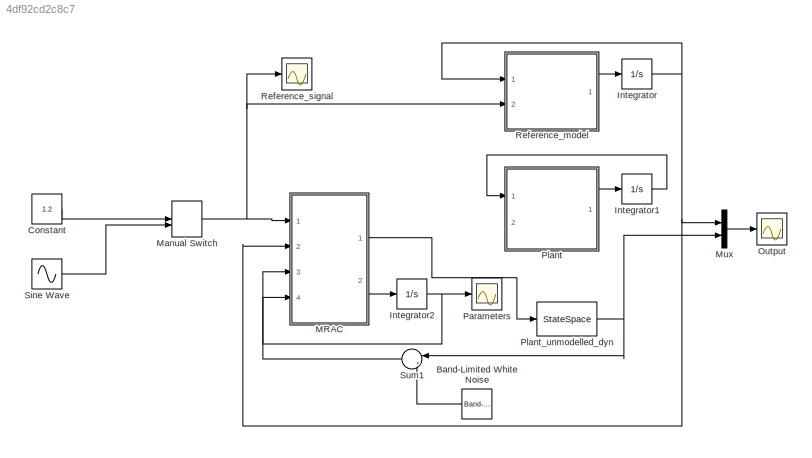
MODEL slx_4df92cd2c8c7
KIND model
CONFIG AbsTol = auto
CONFIG FixedStep = auto
CONFIG MaxStep = auto
CONFIG MinStep = auto
CONFIG RelTol = 1e-3
CONFIG SampleTimeConstraint = Unconstrained
CONFIG Solver = VariableStepAuto
CONFIG SolverMode = Auto
CONFIG SolverName = VariableStepAuto
CONFIG StartTime = 0.0
CONFIG StopTime = 14
BLOCK [Reference] Band-Limited White Noise  REF=simulink/Sources/Band-Limited
White Noise
  Ports = [0, 1]
  SourceBlock = simulink/Sources/Band-Limited\nWhite Noise
  SourceType = Band-Limited White Noise.
BLOCK [Constant] Constant
  Value = 1.2
BLOCK [Integrator] Integrator
  InitialCondition = xm_init
  Ports = [1, 1]
BLOCK [Integrator] Integrator1
  Commented = on
  InitialCondition = xp_init
  Ports = [1, 1]
BLOCK [Integrator] Integrator2
  InitialCondition = theta_init
  Ports = [1, 1]
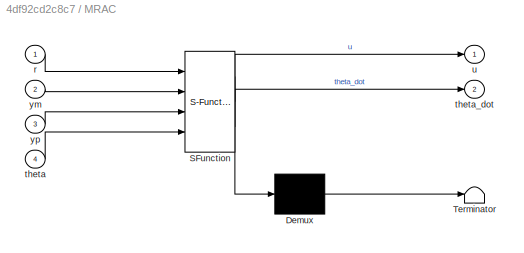
BLOCK [SubSystem] MRAC
  ErrorFcn = Stateflow.Translate.translate
  PermitHierarchicalResolution = ExplicitOnly
  Ports = [4, 2]
  RequestExecContextInheritance = off
  SFBlockType = MATLAB Function
  TreatAsAtomicUnit = on
  Variant = off
BLOCK [Demux] MRAC/ Demux 
  Outputs = 1
  Ports = [1, 1]
BLOCK [S-Function] MRAC/ SFunction 
  EnableBusSupport = on
  FunctionName = sf_sfun
  Parameters = Gamma,kp
  PortCounts = [4 3]
  Ports = [4, 3]
  SFunctionDeploymentMode = off
  Tag = Stateflow S-Function simulink_rohrs 3
BLOCK [Terminator] MRAC/ Terminator 
BLOCK [Inport] MRAC/r
  IconDisplay = Port number
BLOCK [Inport] MRAC/theta
  IconDisplay = Port number
  Port = 4
BLOCK [Outport] MRAC/theta_dot
  IconDisplay = Port number
  Port = 2
BLOCK [Outport] MRAC/u
  IconDisplay = Port number
BLOCK [Inport] MRAC/ym
  IconDisplay = Port number
  Port = 2
BLOCK [Inport] MRAC/yp
  IconDisplay = Port number
  Port = 3
BLOCK [ManualSwitch] Manual Switch
BLOCK [Mux] Mux
  DisplayOption = bar
  Inputs = 2
  Ports = [2, 1]
BLOCK [Scope] Output
  Ports = [1]
  ScopeSpecificationString = Simulink.scopes.TimeScopeBlockCfg('CurrentConfiguration', extmgr.ConfigurationSet(extmgr.Configuration('Core','General UI',true),extmgr.Configuration('Core','Source UI',true),extmgr.Configuration('Sources','WiredSimulink',true),extmgr.Configuration('Visuals','Time Domain',true,'SerializedDisplays',{struct('MinYLimReal','-2.09364','MaxYLimReal','2.51915','YLabelReal','','MinYLimMag','0.00000','MaxY...<+1396ch>
BLOCK [Scope] Parameters
  Ports = [1]
  ScopeSpecificationString = Simulink.scopes.TimeScopeBlockCfg('CurrentConfiguration', extmgr.ConfigurationSet(extmgr.Configuration('Core','General UI',true),extmgr.Configuration('Core','Source UI',true),extmgr.Configuration('Sources','WiredSimulink',true,'DataLoggingVariableName','ScopeData2'),extmgr.Configuration('Visuals','Time Domain',true,'SerializedDisplays',{struct('MinYLimReal','-6.08725','MaxYLimReal','4.57747','YLab...<+1430ch>
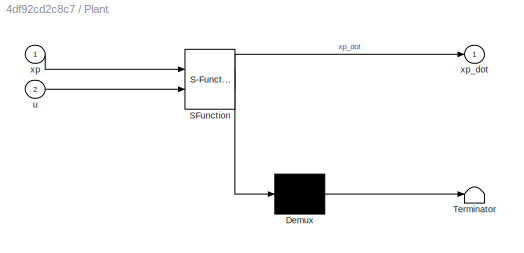
BLOCK [SubSystem] Plant
  Commented = on
  ErrorFcn = Stateflow.Translate.translate
  PermitHierarchicalResolution = ExplicitOnly
  Ports = [2, 1]
  RequestExecContextInheritance = off
  SFBlockType = MATLAB Function
  TreatAsAtomicUnit = on
  Variant = off
BLOCK [Demux] Plant/ Demux 
  Outputs = 1
  Ports = [1, 1]
BLOCK [S-Function] Plant/ SFunction 
  EnableBusSupport = on
  FunctionName = sf_sfun
  Parameters = ap,kp
  PortCounts = [2 2]
  Ports = [2, 2]
  SFunctionDeploymentMode = off
  Tag = Stateflow S-Function simulink_rohrs 2
BLOCK [Terminator] Plant/ Terminator 
BLOCK [Inport] Plant/u
  IconDisplay = Port number
  Port = 2
BLOCK [Inport] Plant/xp
  IconDisplay = Port number
BLOCK [Outport] Plant/xp_dot
  IconDisplay = Port number
BLOCK [StateSpace] Plant_unmodelled_dyn 
  A = sys_r.A
  B = sys_r.B
  C = sys_r.C
  D = sys_r.D
  Ports = [1, 1]
  X0 = 0
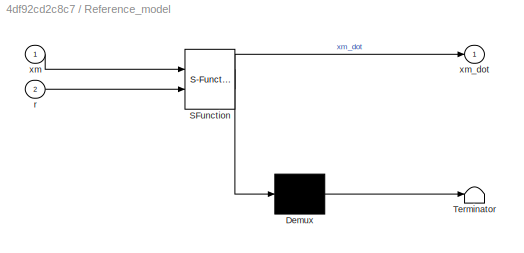
BLOCK [SubSystem] Reference_model
  ErrorFcn = Stateflow.Translate.translate
  PermitHierarchicalResolution = ExplicitOnly
  Ports = [2, 1]
  RequestExecContextInheritance = off
  SFBlockType = MATLAB Function
  TreatAsAtomicUnit = on
  Variant = off
BLOCK [Demux] Reference_model/ Demux 
  Outputs = 1
  Ports = [1, 1]
BLOCK [S-Function] Reference_model/ SFunction 
  EnableBusSupport = on
  FunctionName = sf_sfun
  Parameters = am,km
  PortCounts = [2 2]
  Ports = [2, 2]
  SFunctionDeploymentMode = off
  Tag = Stateflow S-Function simulink_rohrs 1
BLOCK [Terminator] Reference_model/ Terminator 
BLOCK [Inport] Reference_model/r
  IconDisplay = Port number
  Port = 2
BLOCK [Inport] Reference_model/xm
  IconDisplay = Port number
BLOCK [Outport] Reference_model/xm_dot
  IconDisplay = Port number
BLOCK [Scope] Reference_signal
  Ports = [1]
  ScopeSpecificationString = Simulink.scopes.TimeScopeBlockCfg('CurrentConfiguration', extmgr.ConfigurationSet(extmgr.Configuration('Core','General UI',true),extmgr.Configuration('Core','Source UI',true),extmgr.Configuration('Sources','WiredSimulink',true,'DataLoggingVariableName','ScopeData1'),extmgr.Configuration('Visuals','Time Domain',true,'SerializedDisplays',{struct('MinYLimReal','-1.21483','MaxYLimReal','1.24609','YLab...<+1416ch>
BLOCK [Sin] Sine Wave
  Ports = [0, 1]
  SampleTime = 0
BLOCK [Sum] Sum1
  IconShape = round
  InputSameDT = off
  Inputs = |++
  OutDataTypeStr = Inherit: Inherit via internal rule
  Ports = [2, 1]
  SaturateOnIntegerOverflow = off
LINE Band-Limited White Noise:1 -> Sum1:2
LINE Constant:1 -> Manual Switch:1
LINE Integrator1:1 -> Plant:1
NET Integrator2:1 -> MRAC:4, Parameters:1
NET Integrator:1 -> MRAC:2, Mux:1, Reference_model:1
LINE MRAC:1 -> Plant_unmodelled_dyn :1
LINE MRAC:2 -> Integrator2:1
NET Manual Switch:1 -> MRAC:1, Reference_model:2, Reference_signal:1
LINE Mux:1 -> Output:1
LINE Plant:1 -> Integrator1:1
NET Plant_unmodelled_dyn :1 -> Mux:2, Sum1:1
LINE Reference_model:1 -> Integrator:1
LINE Sine Wave:1 -> Manual Switch:2
LINE Sum1:1 -> MRAC:3
note: NET lines group one-source signal fan-out (src -> all destinations, sorted); 1:1 wires keep LINE
CHART Reference_model states=1 transitions=1
  STATE_LABEL 'eML_blk_kernel()'
  STATE_LABEL 'SCRIPT:\nfunction xm_dot  = fcn(xm,r,am,km)\n%#codegen\nxm_dot = am*xm + km*r;\n'
CHART Plant states=1 transitions=1
  STATE_LABEL 'eML_blk_kernel()'
  STATE_LABEL 'SCRIPT:\nfunction xp_dot  = fcn(xp,u,ap,kp)\n%#codegen\n\nxp_dot = ap*xp + kp*u;      % Simplified plant\n\nxp_dot = '
CHART MRAC states=1 transitions=1
  STATE_LABEL 'eML_blk_kernel()'
  STATE_LABEL "SCRIPT:\nfunction [u,theta_dot] = fcn(r,ym,yp,theta,kp,Gamma)\n%#codegen\nerror = yp-ym;\n\nphi = [r,yp]';\n\ntheta_dot = -sign(kp)*Gamma*error*phi;\n\nu = theta'*phi;"
